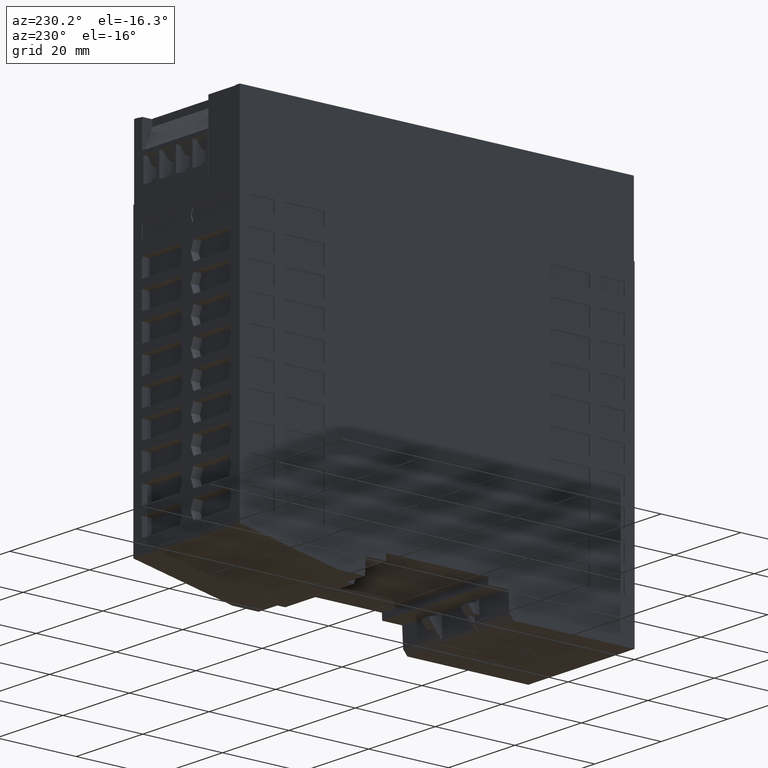
[diagram: clean part render]
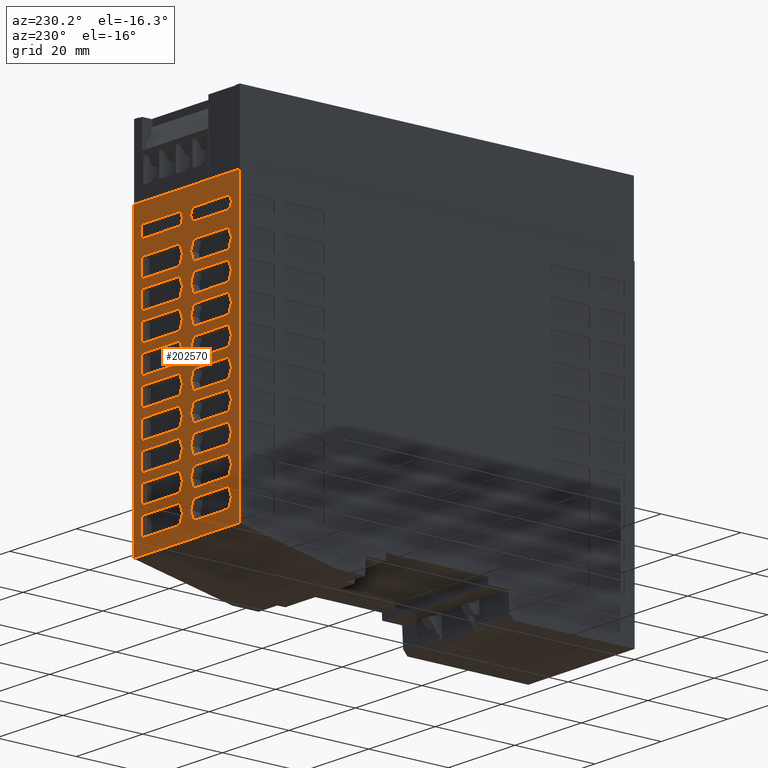
[diagram: same view with one face highlighted and labeled with its STEP entity id]
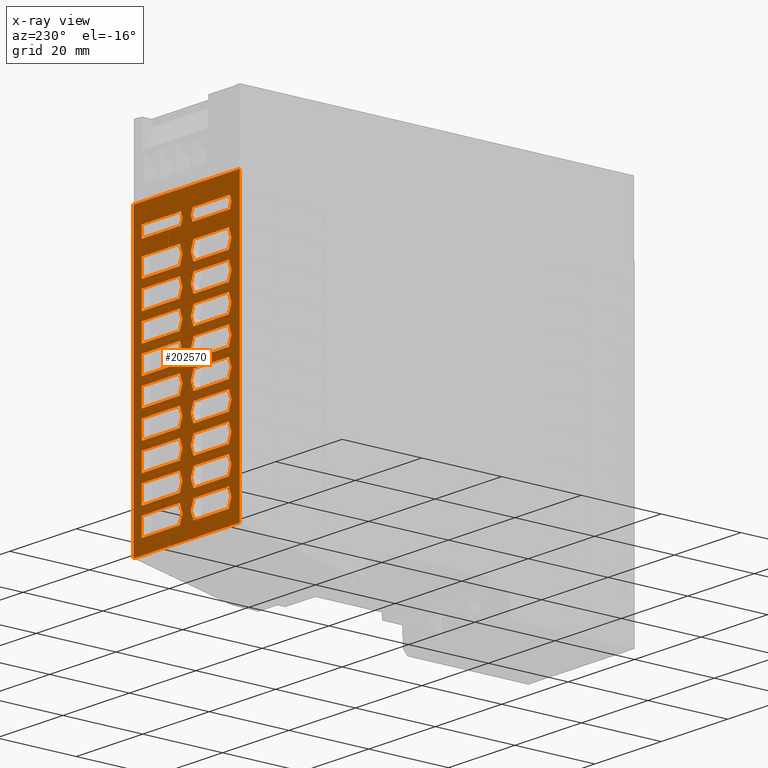
[diagram: x-ray of the same camera — body ghosted, the highlighted face saturated]
A machine part, auxiliary view. The second image highlights one B-rep face of the part: STEP entity #202570.
The next image is the same camera in x-ray: the body ghosted, the highlighted face saturated — about 0% of this face is hidden behind the body in this view.
In plain terms, the highlighted planar face has unit normal (0, -1, 0).
Its self-contained STEP definition (entity closure, byte-faithful):
#60=CARTESIAN_POINT('',(-16.,71.8,49.5095866831055));
#70=DIRECTION('',(0.,-1.,0.));
#80=VECTOR('',#70,1.);
#90=LINE('',#60,#80);
#100=CARTESIAN_POINT('',(-16.,71.8,49.5095866831055));
#110=VERTEX_POINT('',#100);
#120=CARTESIAN_POINT('',(-16.,0.822495129039766,49.5095866831055));
#130=VERTEX_POINT('',#120);
#140=EDGE_CURVE('',#110,#130,#90,.T.);
#23820=CARTESIAN_POINT('',(16.,0.822495129039751,49.5095866831055));
#23830=VERTEX_POINT('',#23820);
#23860=CARTESIAN_POINT('',(16.,71.8,49.5095866831055));
#23870=DIRECTION('',(0.,1.,0.));
#23880=VECTOR('',#23870,1.);
#23890=LINE('',#23860,#23880);
#23900=CARTESIAN_POINT('',(16.,71.8,49.5095866831055));
#23910=VERTEX_POINT('',#23900);
#23920=EDGE_CURVE('',#23830,#23910,#23890,.T.);
#93070=CARTESIAN_POINT('',(0.,0.822495129039766,49.5095866831055));
#93080=DIRECTION('',(-1.,0.,0.));
#93090=VECTOR('',#93080,1.);
#93100=LINE('',#93070,#93090);
#93110=EDGE_CURVE('',#23830,#130,#93100,.T.);
#100860=CARTESIAN_POINT('',(-2.06893302709904,23.85,49.5095866831055));
#100870=VERTEX_POINT('',#100860);
#101040=CARTESIAN_POINT('',(-1.25,26.1,49.5095866831055));
#101050=VERTEX_POINT('',#101040);
#101080=CARTESIAN_POINT('',(15.3834397059671,71.8,49.5095866831055));
#101090=DIRECTION('',(-0.342020143325699,-0.939692620785897,0.));
#101100=VECTOR('',#101090,1.);
#101110=LINE('',#101080,#101100);
#101120=EDGE_CURVE('',#101050,#100870,#101110,.T.);
#109870=CARTESIAN_POINT('',(-2.06893302709903,28.35,49.5095866831055));
#109880=VERTEX_POINT('',#109870);
#109910=CARTESIAN_POINT('',(-17.8834397059671,71.8,49.5095866831055));
#109920=DIRECTION('',(0.342020143325699,-0.939692620785897,0.));
#109930=VECTOR('',#109920,1.);
#109940=LINE('',#109910,#109930);
#109950=EDGE_CURVE('',#109880,#101050,#109940,.T.);
#138200=CARTESIAN_POINT('',(6.45,71.8,49.5095866831055));
#138210=VERTEX_POINT('',#138200);
#141500=CARTESIAN_POINT('',(13.499999999999,13.1,49.5095866831055));
#141510=VERTEX_POINT('',#141500);
#141680=CARTESIAN_POINT('',(12.6810669729,15.35,49.5095866831055));
#141690=VERTEX_POINT('',#141680);
#141720=CARTESIAN_POINT('',(-7.86505275142919,71.8,49.5095866831055));
#141730=DIRECTION('',(0.342020143325699,-0.939692620785897,0.));
#141740=VECTOR('',#141730,1.);
#141750=LINE('',#141720,#141740);
#141760=EDGE_CURVE('',#141690,#141510,#141750,.T.);
#141970=CARTESIAN_POINT('',(-2.068933027099,47.85,49.5095866831055));
#141980=VERTEX_POINT('',#141970);
#142150=CARTESIAN_POINT('',(-13.5,47.85,49.5095866831055));
#142160=VERTEX_POINT('',#142150);
#142190=CARTESIAN_POINT('',(0.,47.85,49.5095866831055));
#142200=DIRECTION('',(1.,0.,0.));
#142210=VECTOR('',#142200,1.);
#142220=LINE('',#142190,#142210);
#142230=EDGE_CURVE('',#142160,#141980,#142220,.T.);
#142440=CARTESIAN_POINT('',(2.068933027099,60.85,49.5095866831055));
#142450=VERTEX_POINT('',#142440);
#142530=CARTESIAN_POINT('',(1.24999999999999,58.6,49.5095866831055));
#142540=VERTEX_POINT('',#142530);
#142570=CARTESIAN_POINT('',(6.05440709231433,71.8,49.5095866831055));
#142580=DIRECTION('',(0.342020143325699,0.939692620785897,0.));
#142590=VECTOR('',#142580,1.);
#142600=LINE('',#142570,#142590);
#142610=EDGE_CURVE('',#142540,#142450,#142600,.T.);
#142820=CARTESIAN_POINT('',(12.6810669729,10.85,49.5095866831055));
#142830=VERTEX_POINT('',#142820);
#142950=CARTESIAN_POINT('',(34.8650527514273,71.8,49.5095866831055));
#142960=DIRECTION('',(-0.342020143325699,-0.939692620785897,0.));
#142970=VECTOR('',#142960,1.);
#142980=LINE('',#142950,#142970);
#142990=EDGE_CURVE('',#141510,#142830,#142980,.T.);
#143200=CARTESIAN_POINT('',(-13.5,30.35,49.5095866831055));
#143210=VERTEX_POINT('',#143200);
#143380=CARTESIAN_POINT('',(-2.06893302709903,30.35,49.5095866831055));
#143390=VERTEX_POINT('',#143380);
#143420=CARTESIAN_POINT('',(0.,30.35,49.5095866831055));
#143430=DIRECTION('',(-1.,0.,0.));
#143440=VECTOR('',#143430,1.);
#143450=LINE('',#143420,#143440);
#143460=EDGE_CURVE('',#143390,#143210,#143450,.T.);
#143760=CARTESIAN_POINT('',(-13.5,43.35,49.5095866831055));
#143770=VERTEX_POINT('',#143760);
#143800=CARTESIAN_POINT('',(-13.5,71.8,49.5095866831055));
#143810=DIRECTION('',(0.,1.,0.));
#143820=VECTOR('',#143810,1.);
#143830=LINE('',#143800,#143820);
#143840=EDGE_CURVE('',#143770,#142160,#143830,.T.);
#153220=CARTESIAN_POINT('',(-13.5,71.8,49.5095866831055));
#153230=VERTEX_POINT('',#153220);
#153260=CARTESIAN_POINT('',(0.,71.8,49.5095866831055));
#153270=DIRECTION('',(1.,0.,0.));
#153280=VECTOR('',#153270,1.);
#153290=LINE('',#153260,#153280);
#153300=EDGE_CURVE('',#110,#153230,#153290,.T.);
#153350=CARTESIAN_POINT('',(0.,71.8,49.5095866831055));
#153360=DIRECTION('',(-1.,1.23259516440783E-32,0.));
#153370=VECTOR('',#153360,1.);
#153380=LINE('',#153350,#153370);
#153390=EDGE_CURVE('',#23910,#138210,#153380,.T.);
#166180=CARTESIAN_POINT('',(12.6810669729,56.35,49.5095866831055));
#166190=VERTEX_POINT('',#166180);
#166270=CARTESIAN_POINT('',(13.499999999999,58.6,49.5095866831055));
#166280=VERTEX_POINT('',#166270);
#166310=CARTESIAN_POINT('',(18.3044070923134,71.8,49.5095866831055));
#166320=DIRECTION('',(-0.342020143325699,-0.939692620785897,0.));
#166330=VECTOR('',#166320,1.);
#166340=LINE('',#166310,#166330);
#166350=EDGE_CURVE('',#166280,#166190,#166340,.T.);
#167550=CARTESIAN_POINT('',(12.6810669729,49.85,49.5095866831055));
#167560=VERTEX_POINT('',#167550);
#167730=CARTESIAN_POINT('',(13.4999999999995,52.1000000000013,
49.5095866831055));
#167740=VERTEX_POINT('',#167730);
#167770=CARTESIAN_POINT('',(20.670213615044,71.8,49.5095866831055));
#167780=DIRECTION('',(-0.342020143325699,-0.939692620785897,0.));
#167790=VECTOR('',#167780,1.);
#167800=LINE('',#167770,#167790);
#167810=EDGE_CURVE('',#167740,#167560,#167800,.T.);
#168020=CARTESIAN_POINT('',(2.06893302709904,43.35,49.5095866831055));
#168030=VERTEX_POINT('',#168020);
#168110=CARTESIAN_POINT('',(12.6810669729,43.35,49.5095866831055));
#168120=VERTEX_POINT('',#168110);
#168150=CARTESIAN_POINT('',(0.,43.35,49.5095866831055));
#168160=DIRECTION('',(-1.,0.,0.));
#168170=VECTOR('',#168160,1.);
#168180=LINE('',#168150,#168170);
#168190=EDGE_CURVE('',#168120,#168030,#168180,.T.);
#168400=CARTESIAN_POINT('',(1.24999999999998,13.0999999999999,
49.5095866831055));
#168410=VERTEX_POINT('',#168400);
#168580=CARTESIAN_POINT('',(2.068933027099,10.85,49.5095866831055));
#168590=VERTEX_POINT('',#168580);
#168620=CARTESIAN_POINT('',(-20.1150527514283,71.8,49.5095866831055));
#168630=DIRECTION('',(-0.342020143325699,0.939692620785897,0.));
#168640=VECTOR('',#168630,1.);
#168650=LINE('',#168620,#168640);
#168660=EDGE_CURVE('',#168590,#168410,#168650,.T.);
#169300=CARTESIAN_POINT('',(2.06893302709904,15.35,49.5095866831055));
#169310=VERTEX_POINT('',#169300);
#169340=CARTESIAN_POINT('',(0.,15.35,49.5095866831055));
#169350=DIRECTION('',(1.,0.,0.));
#169360=VECTOR('',#169350,1.);
#169370=LINE('',#169340,#169360);
#169380=EDGE_CURVE('',#169310,#141690,#169370,.T.);
#169610=CARTESIAN_POINT('',(-1.24999999999998,32.6,49.5095866831055));
#169620=VERTEX_POINT('',#169610);
#169650=CARTESIAN_POINT('',(13.0176331832366,71.8,49.5095866831055));
#169660=DIRECTION('',(-0.342020143325699,-0.939692620785897,0.));
#169670=VECTOR('',#169660,1.);
#169680=LINE('',#169650,#169670);
#169690=EDGE_CURVE('',#169620,#143390,#169680,.T.);
#169900=CARTESIAN_POINT('',(12.681066972901,54.35,49.5095866831055));
#169910=VERTEX_POINT('',#169900);
#170080=CARTESIAN_POINT('',(2.06893302709904,54.35,49.5095866831055));
#170090=VERTEX_POINT('',#170080);
#170120=CARTESIAN_POINT('',(0.,54.35,49.5095866831055));
#170130=DIRECTION('',(1.,0.,0.));
#170140=VECTOR('',#170130,1.);
#170150=LINE('',#170120,#170140);
#170160=EDGE_CURVE('',#170090,#169910,#170150,.T.);
#170370=CARTESIAN_POINT('',(-2.06893302709903,49.85,49.5095866831055));
#170380=VERTEX_POINT('',#170370);
#170550=CARTESIAN_POINT('',(-1.24999999999999,52.1,49.5095866831055));
#170560=VERTEX_POINT('',#170550);
#170590=CARTESIAN_POINT('',(5.92021361504492,71.8,49.5095866831055));
#170600=DIRECTION('',(-0.342020143325699,-0.939692620785897,0.));
#170610=VECTOR('',#170600,1.);
#170620=LINE('',#170590,#170610);
#170630=EDGE_CURVE('',#170560,#170380,#170620,.T.);
#170840=CARTESIAN_POINT('',(12.6810669729,60.85,49.5095866831055));
#170850=VERTEX_POINT('',#170840);
#170900=CARTESIAN_POINT('',(0.,60.85,49.5095866831055));
#170910=DIRECTION('',(1.,0.,0.));
#170920=VECTOR('',#170910,1.);
#170930=LINE('',#170900,#170920);
#170940=EDGE_CURVE('',#142450,#170850,#170930,.T.);
#171150=CARTESIAN_POINT('',(2.06893302709904,56.35,49.5095866831055));
#171160=VERTEX_POINT('',#171150);
#171210=CARTESIAN_POINT('',(0.,56.35,49.5095866831055));
#171220=DIRECTION('',(-1.,0.,0.));
#171230=VECTOR('',#171220,1.);
#171240=LINE('',#171210,#171230);
#171250=EDGE_CURVE('',#166190,#171160,#171240,.T.);
#171460=CARTESIAN_POINT('',(2.068933027099,49.85,49.5095866831055));
#171470=VERTEX_POINT('',#171460);
#171590=CARTESIAN_POINT('',(0.,49.85,49.5095866831055));
#171600=DIRECTION('',(-1.,0.,0.));
#171610=VECTOR('',#171600,1.);
#171620=LINE('',#171590,#171610);
#171630=EDGE_CURVE('',#167560,#171470,#171620,.T.);
#171840=CARTESIAN_POINT('',(13.499999999999,45.6,49.5095866831055));
#171850=VERTEX_POINT('',#171840);
#171930=CARTESIAN_POINT('',(12.6810669729,47.85,49.5095866831055));
#171940=VERTEX_POINT('',#171930);
#171970=CARTESIAN_POINT('',(3.96397986222357,71.8,49.5095866831055));
#171980=DIRECTION('',(0.342020143325699,-0.939692620785897,0.));
#171990=VECTOR('',#171980,1.);
#172000=LINE('',#171970,#171990);
#172010=EDGE_CURVE('',#171940,#171850,#172000,.T.);
#172220=CARTESIAN_POINT('',(-13.5,54.35,49.5095866831055));
#172230=VERTEX_POINT('',#172220);
#172400=CARTESIAN_POINT('',(-13.5,49.85,49.5095866831055));
#172410=VERTEX_POINT('',#172400);
#172440=CARTESIAN_POINT('',(-13.5,71.8,49.5095866831055));
#172450=DIRECTION('',(0.,1.,0.));
#172460=VECTOR('',#172450,1.);
#172470=LINE('',#172440,#172460);
#172480=EDGE_CURVE('',#172410,#172230,#172470,.T.);
#172690=CARTESIAN_POINT('',(1.24999999999999,52.0999999999999,
49.5095866831055));
#172700=VERTEX_POINT('',#172690);
#172820=CARTESIAN_POINT('',(-5.92021361504495,71.8,49.5095866831055));
#172830=DIRECTION('',(-0.342020143325699,0.939692620785897,0.));
#172840=VECTOR('',#172830,1.);
#172850=LINE('',#172820,#172840);
#172860=EDGE_CURVE('',#171470,#172700,#172850,.T.);
#174070=CARTESIAN_POINT('',(-1.25,6.59999999999997,49.5095866831055));
#174080=VERTEX_POINT('',#174070);
#174160=CARTESIAN_POINT('',(-2.06893302709904,8.84999999999998,
49.5095866831055));
#174170=VERTEX_POINT('',#174160);
#174200=CARTESIAN_POINT('',(-24.9808592741588,71.8,49.5095866831055));
#174210=DIRECTION('',(0.342020143325699,-0.939692620785897,0.));
#174220=VECTOR('',#174210,1.);
#174230=LINE('',#174200,#174220);
#174240=EDGE_CURVE('',#174170,#174080,#174230,.T.);
#174450=CARTESIAN_POINT('',(-2.06893302709903,4.34999999999998,
49.5095866831055));
#174460=VERTEX_POINT('',#174450);
#174510=CARTESIAN_POINT('',(22.4808592741588,71.8,49.5095866831055));
#174520=DIRECTION('',(-0.342020143325699,-0.939692620785897,0.));
#174530=VECTOR('',#174520,1.);
#174540=LINE('',#174510,#174530);
#174550=EDGE_CURVE('',#174080,#174460,#174540,.T.);
#174760=CARTESIAN_POINT('',(-13.5,4.34999999999998,49.5095866831055));
#174770=VERTEX_POINT('',#174760);
#174820=CARTESIAN_POINT('',(0.,4.34999999999998,49.5095866831055));
#174830=DIRECTION('',(-1.,0.,0.));
#174840=VECTOR('',#174830,1.);
#174850=LINE('',#174820,#174840);
#174860=EDGE_CURVE('',#174460,#174770,#174850,.T.);
#175070=CARTESIAN_POINT('',(-13.5,8.84999999999998,49.5095866831055));
#175080=VERTEX_POINT('',#175070);
#175130=CARTESIAN_POINT('',(-13.5,71.8,49.5095866831055));
#175140=DIRECTION('',(0.,1.,0.));
#175150=VECTOR('',#175140,1.);
#175160=LINE('',#175130,#175150);
#175170=EDGE_CURVE('',#174770,#175080,#175160,.T.);
#175370=CARTESIAN_POINT('',(0.,8.84999999999998,49.5095866831055));
#175380=DIRECTION('',(1.,0.,0.));
#175390=VECTOR('',#175380,1.);
#175400=LINE('',#175370,#175390);
#175410=EDGE_CURVE('',#175080,#174170,#175400,.T.);
#175620=CARTESIAN_POINT('',(-13.5,34.85,49.5095866831055));
#175630=VERTEX_POINT('',#175620);
#175680=CARTESIAN_POINT('',(-13.5,71.8,49.5095866831055));
#175690=DIRECTION('',(0.,1.,0.));
#175700=VECTOR('',#175690,1.);
#175710=LINE('',#175680,#175700);
#175720=EDGE_CURVE('',#143210,#175630,#175710,.T.);
#175930=CARTESIAN_POINT('',(1.25000000000001,45.6,49.5095866831055));
#175940=VERTEX_POINT('',#175930);
#175990=CARTESIAN_POINT('',(-8.28602013777546,71.8,49.5095866831055));
#176000=DIRECTION('',(-0.342020143325699,0.939692620785897,0.));
#176010=VECTOR('',#176000,1.);
#176020=LINE('',#175990,#176010);
#176030=EDGE_CURVE('',#168030,#175940,#176020,.T.);
#176590=CARTESIAN_POINT('',(-2.06893302709903,54.35,49.5095866831055));
#176600=VERTEX_POINT('',#176590);
#176630=CARTESIAN_POINT('',(-8.42021361504491,71.8,49.5095866831055));
#176640=DIRECTION('',(0.342020143325699,-0.939692620785897,0.));
#176650=VECTOR('',#176640,1.);
#176660=LINE('',#176630,#176650);
#176670=EDGE_CURVE('',#176600,#170560,#176660,.T.);
#176900=CARTESIAN_POINT('',(-2.068933027099,34.85,49.5095866831055));
#176910=VERTEX_POINT('',#176900);
#176940=CARTESIAN_POINT('',(-15.5176331832365,71.8,49.5095866831055));
#176950=DIRECTION('',(0.342020143325699,-0.939692620785897,0.));
#176960=VECTOR('',#176950,1.);
#176970=LINE('',#176940,#176960);
#176980=EDGE_CURVE('',#176910,#169620,#176970,.T.);
#177230=CARTESIAN_POINT('',(0.,10.85,49.5095866831055));
#177240=DIRECTION('',(-1.,0.,0.));
#177250=VECTOR('',#177240,1.);
#177260=LINE('',#177230,#177250);
#177270=EDGE_CURVE('',#142830,#168590,#177260,.T.);
#177520=CARTESIAN_POINT('',(0.,49.85,49.5095866831055));
#177530=DIRECTION('',(-1.,0.,0.));
#177540=VECTOR('',#177530,1.);
#177550=LINE('',#177520,#177540);
#177560=EDGE_CURVE('',#170380,#172410,#177550,.T.);
#177770=CARTESIAN_POINT('',(-2.068933027099,56.35,49.5095866831055));
#177780=VERTEX_POINT('',#177770);
#177860=CARTESIAN_POINT('',(-1.24999999999996,58.6,49.5095866831055));
#177870=VERTEX_POINT('',#177860);
#177900=CARTESIAN_POINT('',(3.5544070923144,71.8,49.5095866831055));
#177910=DIRECTION('',(-0.342020143325699,-0.939692620785897,0.));
#177920=VECTOR('',#177910,1.);
#177930=LINE('',#177900,#177920);
#177940=EDGE_CURVE('',#177870,#177780,#177930,.T.);
#178140=CARTESIAN_POINT('',(0.,34.85,49.5095866831055));
#178150=DIRECTION('',(1.,0.,0.));
#178160=VECTOR('',#178150,1.);
#178170=LINE('',#178140,#178160);
#178180=EDGE_CURVE('',#175630,#176910,#178170,.T.);
#178380=CARTESIAN_POINT('',(-3.55440709231436,71.8,49.5095866831055));
#178390=DIRECTION('',(-0.342020143325699,0.939692620785897,0.));
#178400=VECTOR('',#178390,1.);
#178410=LINE('',#178380,#178400);
#178420=EDGE_CURVE('',#171160,#142540,#178410,.T.);
#178650=CARTESIAN_POINT('',(-2.06893302709903,43.35,49.5095866831055));
#178660=VERTEX_POINT('',#178650);
#178690=CARTESIAN_POINT('',(0.,43.35,49.5095866831055));
#178700=DIRECTION('',(-1.,0.,0.));
#178710=VECTOR('',#178700,1.);
#178720=LINE('',#178690,#178710);
#178730=EDGE_CURVE('',#178660,#143770,#178720,.T.);
#178940=CARTESIAN_POINT('',(-1.24999999999998,45.6,49.5095866831055));
#178950=VERTEX_POINT('',#178940);
#179000=CARTESIAN_POINT('',(-10.7860201377754,71.8,49.5095866831055));
#179010=DIRECTION('',(0.342020143325699,-0.939692620785897,0.));
#179020=VECTOR('',#179010,1.);
#179030=LINE('',#179000,#179020);
#179040=EDGE_CURVE('',#141980,#178950,#179030,.T.);
#179250=CARTESIAN_POINT('',(-2.06893302709899,60.85,49.5095866831055));
#179260=VERTEX_POINT('',#179250);
#179340=CARTESIAN_POINT('',(-13.5,60.85,49.5095866831055));
#179350=VERTEX_POINT('',#179340);
#179380=CARTESIAN_POINT('',(0.,60.85,49.5095866831055));
#179390=DIRECTION('',(1.,0.,0.));
#179400=VECTOR('',#179390,1.);
#179410=LINE('',#179380,#179400);
#179420=EDGE_CURVE('',#179350,#179260,#179410,.T.);
#179620=CARTESIAN_POINT('',(-6.05440709231432,71.8,49.5095866831055));
#179630=DIRECTION('',(0.342020143325699,-0.939692620785897,0.));
#179640=VECTOR('',#179630,1.);
#179650=LINE('',#179620,#179640);
#179660=EDGE_CURVE('',#179260,#177870,#179650,.T.);
#179860=CARTESIAN_POINT('',(8.69559290768468,71.8,49.5095866831055));
#179870=DIRECTION('',(0.342020143325699,-0.939692620785897,0.));
#179880=VECTOR('',#179870,1.);
#179890=LINE('',#179860,#179880);
#179900=EDGE_CURVE('',#170850,#166280,#179890,.T.);
#180150=CARTESIAN_POINT('',(0.,54.35,49.5095866831055));
#180160=DIRECTION('',(1.,0.,0.));
#180170=VECTOR('',#180160,1.);
#180180=LINE('',#180150,#180170);
#180190=EDGE_CURVE('',#172230,#176600,#180180,.T.);
#180390=CARTESIAN_POINT('',(8.28602013777547,71.8,49.5095866831055));
#180400=DIRECTION('',(-0.342020143325699,-0.939692620785897,0.));
#180410=VECTOR('',#180400,1.);
#180420=LINE('',#180390,#180410);
#180430=EDGE_CURVE('',#178950,#178660,#180420,.T.);
#180790=CARTESIAN_POINT('',(2.06893302709904,47.85,49.5095866831055));
#180800=VERTEX_POINT('',#180790);
#180850=CARTESIAN_POINT('',(10.7860201377755,71.8,49.5095866831055));
#180860=DIRECTION('',(0.342020143325699,0.939692620785897,0.));
#180870=VECTOR('',#180860,1.);
#180880=LINE('',#180850,#180870);
#180890=EDGE_CURVE('',#175940,#180800,#180880,.T.);
#181120=CARTESIAN_POINT('',(-13.5,56.35,49.5095866831055));
#181130=VERTEX_POINT('',#181120);
#181160=CARTESIAN_POINT('',(-13.5,71.8,49.5095866831055));
#181170=DIRECTION('',(0.,1.,0.));
#181180=VECTOR('',#181170,1.);
#181190=LINE('',#181160,#181180);
#181200=EDGE_CURVE('',#181130,#179350,#181190,.T.);
#181400=CARTESIAN_POINT('',(8.42021361504492,71.8,49.5095866831055));
#181410=DIRECTION('',(0.342020143325699,0.939692620785897,0.));
#181420=VECTOR('',#181410,1.);
#181430=LINE('',#181400,#181420);
#181440=EDGE_CURVE('',#172700,#170090,#181430,.T.);
#181640=CARTESIAN_POINT('',(0.,47.85,49.5095866831055));
#181650=DIRECTION('',(1.,0.,0.));
#181660=VECTOR('',#181650,1.);
#181670=LINE('',#181640,#181660);
#181680=EDGE_CURVE('',#180800,#171940,#181670,.T.);
#181880=CARTESIAN_POINT('',(6.32978638495509,71.8,49.5095866831055));
#181890=DIRECTION('',(0.342020143325699,-0.939692620785897,0.));
#181900=VECTOR('',#181890,1.);
#181910=LINE('',#181880,#181900);
#181920=EDGE_CURVE('',#169910,#167740,#181910,.T.);
#182120=CARTESIAN_POINT('',(23.0360201377745,71.8,49.5095866831055));
#182130=DIRECTION('',(-0.342020143325699,-0.939692620785897,0.));
#182140=VECTOR('',#182130,1.);
#182150=LINE('',#182120,#182140);
#182160=EDGE_CURVE('',#171850,#168120,#182150,.T.);
#182360=CARTESIAN_POINT('',(0.,56.35,49.5095866831055));
#182370=DIRECTION('',(-1.,0.,0.));
#182380=VECTOR('',#182370,1.);
#182390=LINE('',#182360,#182380);
#182400=EDGE_CURVE('',#177780,#181130,#182390,.T.);
#182810=CARTESIAN_POINT('',(22.6150527514282,71.8,49.5095866831055));
#182820=DIRECTION('',(0.342020143325699,0.939692620785897,0.));
#182830=VECTOR('',#182820,1.);
#182840=LINE('',#182810,#182830);
#182850=EDGE_CURVE('',#168410,#169310,#182840,.T.);
#193860=CARTESIAN_POINT('',(-6.50000000000001,71.8,49.5095866831055));
#193870=DIRECTION('',(0.,0.,-1.));
#193880=DIRECTION('',(0.,1.,0.));
#193890=AXIS2_PLACEMENT_3D('',#193860,#193870,#193880);
#193900=PLANE('',#193890);
#193990=CARTESIAN_POINT('',(0.,71.8,49.5095866831055));
#194000=DIRECTION('',(-1.,0.,0.));
#194010=VECTOR('',#194000,1.);
#194020=LINE('',#193990,#194010);
#194030=EDGE_CURVE('',#138210,#153230,#194020,.T.);
#196880=CARTESIAN_POINT('',(15.6656228938803,71.8,49.5095866831055));
#196890=DIRECTION('',(-0.342020143325699,-0.939692620785897,0.));
#196900=VECTOR('',#196890,1.);
#196910=LINE('',#196880,#196900);
#196920=CARTESIAN_POINT('',(13.4999999999981,65.8500000000052,
49.5095866831055));
#196930=VERTEX_POINT('',#196920);
#196940=CARTESIAN_POINT('',(12.96759118914,64.387218814254,
49.5095866831055));
#196950=VERTEX_POINT('',#196940);
#196960=EDGE_CURVE('',#196930,#196950,#196910,.T.);
#196970=ORIENTED_EDGE('',*,*,#196960,.T.);
#196980=CARTESIAN_POINT('',(11.3343771061159,71.8,49.5095866831055));
#196990=DIRECTION('',(0.342020143325699,-0.939692620785897,0.));
#197000=VECTOR('',#196990,1.);
#197010=LINE('',#196980,#197000);
#197020=CARTESIAN_POINT('',(12.9676715751882,67.312560326904,
49.5095866831055));
#197030=VERTEX_POINT('',#197020);
#197040=EDGE_CURVE('',#197030,#196930,#197010,.T.);
#197050=ORIENTED_EDGE('',*,*,#197040,.T.);
#197060=CARTESIAN_POINT('',(0.,67.312560326904,49.5095866831055));
#197070=DIRECTION('',(1.,0.,0.));
#197080=VECTOR('',#197070,1.);
#197090=LINE('',#197060,#197080);
#197100=CARTESIAN_POINT('',(1.78232842481176,67.312560326904,
49.5095866831055));
#197110=VERTEX_POINT('',#197100);
#197120=EDGE_CURVE('',#197110,#197030,#197090,.T.);
#197130=ORIENTED_EDGE('',*,*,#197120,.T.);
#197140=CARTESIAN_POINT('',(3.41562289388413,71.8,49.5095866831055));
#197150=DIRECTION('',(0.342020143325699,0.939692620785897,0.));
#197160=VECTOR('',#197150,1.);
#197170=LINE('',#197140,#197160);
#197180=CARTESIAN_POINT('',(1.2499999999999,65.8499999999997,
49.5095866831055));
#197190=VERTEX_POINT('',#197180);
#197200=EDGE_CURVE('',#197190,#197110,#197170,.T.);
#197210=ORIENTED_EDGE('',*,*,#197200,.T.);
#197220=CARTESIAN_POINT('',(-0.915622893884341,71.8,49.5095866831055));
#197230=DIRECTION('',(-0.342020143325699,0.939692620785897,0.));
#197240=VECTOR('',#197230,1.);
#197250=LINE('',#197220,#197240);
#197260=CARTESIAN_POINT('',(1.782408810856,64.387218814254,
49.5095866831055));
#197270=VERTEX_POINT('',#197260);
#197280=EDGE_CURVE('',#197270,#197190,#197250,.T.);
#197290=ORIENTED_EDGE('',*,*,#197280,.T.);
#197300=CARTESIAN_POINT('',(0.,64.387218814254,49.5095866831055));
#197310=DIRECTION('',(-1.,0.,0.));
#197320=VECTOR('',#197310,1.);
#197330=LINE('',#197300,#197320);
#197340=EDGE_CURVE('',#196950,#197270,#197330,.T.);
#197350=ORIENTED_EDGE('',*,*,#197340,.T.);
#197360=EDGE_LOOP('',(#197350,#197290,#197210,#197130,#197050,#196970));
#197370=FACE_BOUND('',#197360,.T.);
#197380=ORIENTED_EDGE('',*,*,#175410,.T.);
#197390=ORIENTED_EDGE('',*,*,#175170,.T.);
#197400=ORIENTED_EDGE('',*,*,#174860,.T.);
#197410=ORIENTED_EDGE('',*,*,#174550,.T.);
#197420=ORIENTED_EDGE('',*,*,#174240,.T.);
#197430=EDGE_LOOP('',(#197420,#197410,#197400,#197390,#197380));
#197440=FACE_BOUND('',#197430,.T.);
#197450=CARTESIAN_POINT('',(0.,28.35,49.5095866831055));
#197460=DIRECTION('',(1.,0.,0.));
#197470=VECTOR('',#197460,1.);
#197480=LINE('',#197450,#197470);
#197490=CARTESIAN_POINT('',(-13.5,28.35,49.5095866831055));
#197500=VERTEX_POINT('',#197490);
#197510=EDGE_CURVE('',#197500,#109880,#197480,.T.);
#197520=ORIENTED_EDGE('',*,*,#197510,.T.);
#197530=CARTESIAN_POINT('',(-13.5,71.8,49.5095866831055));
#197540=DIRECTION('',(0.,1.,0.));
#197550=VECTOR('',#197540,1.);
#197560=LINE('',#197530,#197550);
#197570=CARTESIAN_POINT('',(-13.5,23.85,49.5095866831055));
#197580=VERTEX_POINT('',#197570);
#197590=EDGE_CURVE('',#197580,#197500,#197560,.T.);
#197600=ORIENTED_EDGE('',*,*,#197590,.T.);
#197610=CARTESIAN_POINT('',(0.,23.85,49.5095866831055));
#197620=DIRECTION('',(-1.,0.,0.));
#197630=VECTOR('',#197620,1.);
#197640=LINE('',#197610,#197630);
#197650=EDGE_CURVE('',#100870,#197580,#197640,.T.);
#197660=ORIENTED_EDGE('',*,*,#197650,.T.);
#197670=ORIENTED_EDGE('',*,*,#101120,.T.);
#197680=ORIENTED_EDGE('',*,*,#109950,.T.);
#197690=EDGE_LOOP('',(#197680,#197670,#197660,#197600,#197520));
#197700=FACE_BOUND('',#197690,.T.);
#197710=CARTESIAN_POINT('',(0.,67.3,49.5095866831055));
#197720=DIRECTION('',(1.,0.,0.));
#197730=VECTOR('',#197720,1.);
#197740=LINE('',#197710,#197730);
#197750=CARTESIAN_POINT('',(-13.5,67.3,49.5095866831055));
#197760=VERTEX_POINT('',#197750);
#197770=CARTESIAN_POINT('',(-1.77775683968604,67.3,49.5095866831055));
#197780=VERTEX_POINT('',#197770);
#197790=EDGE_CURVE('',#197760,#197780,#197740,.T.);
#197800=ORIENTED_EDGE('',*,*,#197790,.T.);
#197810=CARTESIAN_POINT('',(-13.5,71.8,49.5095866831055));
#197820=DIRECTION('',(0.,1.,0.));
#197830=VECTOR('',#197820,1.);
#197840=LINE('',#197810,#197830);
#197850=CARTESIAN_POINT('',(-13.5,64.4,49.5095866831055));
#197860=VERTEX_POINT('',#197850);
#197870=EDGE_CURVE('',#197860,#197760,#197840,.T.);
#197880=ORIENTED_EDGE('',*,*,#197870,.T.);
#197890=CARTESIAN_POINT('',(0.,64.4,49.5095866831055));
#197900=DIRECTION('',(-1.,0.,0.));
#197910=VECTOR('',#197900,1.);
#197920=LINE('',#197890,#197910);
#197930=CARTESIAN_POINT('',(-1.77775683968604,64.4,49.5095866831055));
#197940=VERTEX_POINT('',#197930);
#197950=EDGE_CURVE('',#197940,#197860,#197920,.T.);
#197960=ORIENTED_EDGE('',*,*,#197950,.T.);
#197970=CARTESIAN_POINT('',(0.915622893884131,71.8,49.5095866831055));
#197980=DIRECTION('',(-0.342020143325699,-0.939692620785897,0.));
#197990=VECTOR('',#197980,1.);
#198000=LINE('',#197970,#197990);
#198010=CARTESIAN_POINT('',(-1.25,65.85,49.5095866831055));
#198020=VERTEX_POINT('',#198010);
#198030=EDGE_CURVE('',#198020,#197940,#198000,.T.);
#198040=ORIENTED_EDGE('',*,*,#198030,.T.);
#198050=CARTESIAN_POINT('',(-3.41562289388412,71.8,49.5095866831055));
#198060=DIRECTION('',(0.342020143325699,-0.939692620785897,0.));
#198070=VECTOR('',#198060,1.);
#198080=LINE('',#198050,#198070);
#198090=EDGE_CURVE('',#197780,#198020,#198080,.T.);
#198100=ORIENTED_EDGE('',*,*,#198090,.T.);
#198110=EDGE_LOOP('',(#198100,#198040,#197960,#197880,#197800));
#198120=FACE_BOUND('',#198110,.T.);
#198130=CARTESIAN_POINT('',(0.,41.35,49.5095866831055));
#198140=DIRECTION('',(1.,0.,0.));
#198150=VECTOR('',#198140,1.);
#198160=LINE('',#198130,#198150);
#198170=CARTESIAN_POINT('',(-13.5,41.35,49.5095866831055));
#198180=VERTEX_POINT('',#198170);
#198190=CARTESIAN_POINT('',(-2.06893302709904,41.35,49.5095866831055));
#198200=VERTEX_POINT('',#198190);
#198210=EDGE_CURVE('',#198180,#198200,#198160,.T.);
#198220=ORIENTED_EDGE('',*,*,#198210,.T.);
#198230=CARTESIAN_POINT('',(-13.5,71.8,49.5095866831055));
#198240=DIRECTION('',(0.,1.,0.));
#198250=VECTOR('',#198240,1.);
#198260=LINE('',#198230,#198250);
#198270=CARTESIAN_POINT('',(-13.5,36.85,49.5095866831055));
#198280=VERTEX_POINT('',#198270);
#198290=EDGE_CURVE('',#198280,#198180,#198260,.T.);
#198300=ORIENTED_EDGE('',*,*,#198290,.T.);
#198310=CARTESIAN_POINT('',(0.,36.85,49.5095866831055));
#198320=DIRECTION('',(-1.,0.,0.));
#198330=VECTOR('',#198320,1.);
#198340=LINE('',#198310,#198330);
#198350=CARTESIAN_POINT('',(-2.06893302709903,36.85,49.5095866831055));
#198360=VERTEX_POINT('',#198350);
#198370=EDGE_CURVE('',#198360,#198280,#198340,.T.);
#198380=ORIENTED_EDGE('',*,*,#198370,.T.);
#198390=CARTESIAN_POINT('',(10.651826660506,71.8,49.5095866831055));
#198400=DIRECTION('',(-0.342020143325699,-0.939692620785897,0.));
#198410=VECTOR('',#198400,1.);
#198420=LINE('',#198390,#198410);
#198430=CARTESIAN_POINT('',(-1.25,39.1,49.5095866831055));
#198440=VERTEX_POINT('',#198430);
#198450=EDGE_CURVE('',#198440,#198360,#198420,.T.);
#198460=ORIENTED_EDGE('',*,*,#198450,.T.);
#198470=CARTESIAN_POINT('',(-13.151826660506,71.8,49.5095866831055));
#198480=DIRECTION('',(0.342020143325699,-0.939692620785897,0.));
#198490=VECTOR('',#198480,1.);
#198500=LINE('',#198470,#198490);
#198510=EDGE_CURVE('',#198200,#198440,#198500,.T.);
#198520=ORIENTED_EDGE('',*,*,#198510,.T.);
#198530=EDGE_LOOP('',(#198520,#198460,#198380,#198300,#198220));
#198540=FACE_BOUND('',#198530,.T.);
#198550=ORIENTED_EDGE('',*,*,#182400,.T.);
#198560=ORIENTED_EDGE('',*,*,#177940,.T.);
#198570=ORIENTED_EDGE('',*,*,#179660,.T.);
#198580=ORIENTED_EDGE('',*,*,#179420,.T.);
#198590=ORIENTED_EDGE('',*,*,#181200,.T.);
#198600=EDGE_LOOP('',(#198590,#198580,#198570,#198560,#198550));
#198610=FACE_BOUND('',#198600,.T.);
#198620=ORIENTED_EDGE('',*,*,#180190,.T.);
#198630=ORIENTED_EDGE('',*,*,#172480,.T.);
#198640=ORIENTED_EDGE('',*,*,#177560,.T.);
#198650=ORIENTED_EDGE('',*,*,#170630,.T.);
#198660=ORIENTED_EDGE('',*,*,#176670,.T.);
#198670=EDGE_LOOP('',(#198660,#198650,#198640,#198630,#198620));
#198680=FACE_BOUND('',#198670,.T.);
#198690=CARTESIAN_POINT('',(0.,15.35,49.5095866831055));
#198700=DIRECTION('',(1.,0.,0.));
#198710=VECTOR('',#198700,1.);
#198720=LINE('',#198690,#198710);
#198730=CARTESIAN_POINT('',(-13.5,15.35,49.5095866831055));
#198740=VERTEX_POINT('',#198730);
#198750=CARTESIAN_POINT('',(-2.06893302709903,15.35,49.5095866831055));
#198760=VERTEX_POINT('',#198750);
#198770=EDGE_CURVE('',#198740,#198760,#198720,.T.);
#198780=ORIENTED_EDGE('',*,*,#198770,.T.);
#198790=CARTESIAN_POINT('',(-13.5,71.8,49.5095866831055));
#198800=DIRECTION('',(0.,1.,0.));
#198810=VECTOR('',#198800,1.);
#198820=LINE('',#198790,#198810);
#198830=CARTESIAN_POINT('',(-13.5,10.85,49.5095866831055));
#198840=VERTEX_POINT('',#198830);
#198850=EDGE_CURVE('',#198840,#198740,#198820,.T.);
#198860=ORIENTED_EDGE('',*,*,#198850,.T.);
#198870=CARTESIAN_POINT('',(0.,10.85,49.5095866831055));
#198880=DIRECTION('',(-1.,0.,0.));
#198890=VECTOR('',#198880,1.);
#198900=LINE('',#198870,#198890);
#198910=CARTESIAN_POINT('',(-2.06893302709903,10.85,49.5095866831055));
#198920=VERTEX_POINT('',#198910);
#198930=EDGE_CURVE('',#198920,#198840,#198900,.T.);
#198940=ORIENTED_EDGE('',*,*,#198930,.T.);
#198950=CARTESIAN_POINT('',(20.1150527514282,71.8,49.5095866831055));
#198960=DIRECTION('',(-0.342020143325699,-0.939692620785897,0.));
#198970=VECTOR('',#198960,1.);
#198980=LINE('',#198950,#198970);
#198990=CARTESIAN_POINT('',(-1.25,13.1,49.5095866831055));
#199000=VERTEX_POINT('',#198990);
#199010=EDGE_CURVE('',#199000,#198920,#198980,.T.);
#199020=ORIENTED_EDGE('',*,*,#199010,.T.);
#199030=CARTESIAN_POINT('',(-22.6150527514282,71.8,49.5095866831055));
#199040=DIRECTION('',(0.342020143325699,-0.939692620785897,0.));
#199050=VECTOR('',#199040,1.);
#199060=LINE('',#199030,#199050);
#199070=EDGE_CURVE('',#198760,#199000,#199060,.T.);
#199080=ORIENTED_EDGE('',*,*,#199070,.T.);
#199090=EDGE_LOOP('',(#199080,#199020,#198940,#198860,#198780));
#199100=FACE_BOUND('',#199090,.T.);
#199110=ORIENTED_EDGE('',*,*,#179040,.T.);
#199120=ORIENTED_EDGE('',*,*,#142230,.T.);
#199130=ORIENTED_EDGE('',*,*,#143840,.T.);
#199140=ORIENTED_EDGE('',*,*,#178730,.T.);
#199150=ORIENTED_EDGE('',*,*,#180430,.T.);
#199160=EDGE_LOOP('',(#199150,#199140,#199130,#199120,#199110));
#199170=FACE_BOUND('',#199160,.T.);
#199180=CARTESIAN_POINT('',(0.,21.85,49.5095866831055));
#199190=DIRECTION('',(1.,0.,0.));
#199200=VECTOR('',#199190,1.);
#199210=LINE('',#199180,#199200);
#199220=CARTESIAN_POINT('',(-13.5,21.85,49.5095866831055));
#199230=VERTEX_POINT('',#199220);
#199240=CARTESIAN_POINT('',(-2.068933027099,21.85,49.5095866831055));
#199250=VERTEX_POINT('',#199240);
#199260=EDGE_CURVE('',#199230,#199250,#199210,.T.);
#199270=ORIENTED_EDGE('',*,*,#199260,.T.);
#199280=CARTESIAN_POINT('',(-13.5,71.8,49.5095866831055));
#199290=DIRECTION('',(0.,1.,0.));
#199300=VECTOR('',#199290,1.);
#199310=LINE('',#199280,#199300);
#199320=CARTESIAN_POINT('',(-13.5,17.35,49.5095866831055));
#199330=VERTEX_POINT('',#199320);
#199340=EDGE_CURVE('',#199330,#199230,#199310,.T.);
#199350=ORIENTED_EDGE('',*,*,#199340,.T.);
#199360=CARTESIAN_POINT('',(0.,17.35,49.5095866831055));
#199370=DIRECTION('',(-1.,0.,0.));
#199380=VECTOR('',#199370,1.);
#199390=LINE('',#199360,#199380);
#199400=CARTESIAN_POINT('',(-2.06893302709904,17.35,49.5095866831055));
#199410=VERTEX_POINT('',#199400);
#199420=EDGE_CURVE('',#199410,#199330,#199390,.T.);
#199430=ORIENTED_EDGE('',*,*,#199420,.T.);
#199440=CARTESIAN_POINT('',(17.7492462286977,71.8,49.5095866831055));
#199450=DIRECTION('',(-0.342020143325699,-0.939692620785897,0.));
#199460=VECTOR('',#199450,1.);
#199470=LINE('',#199440,#199460);
#199480=CARTESIAN_POINT('',(-1.24999999999998,19.6,49.5095866831055));
#199490=VERTEX_POINT('',#199480);
#199500=EDGE_CURVE('',#199490,#199410,#199470,.T.);
#199510=ORIENTED_EDGE('',*,*,#199500,.T.);
#199520=CARTESIAN_POINT('',(-20.2492462286976,71.8,49.5095866831055));
#199530=DIRECTION('',(0.342020143325699,-0.939692620785897,0.));
#199540=VECTOR('',#199530,1.);
#199550=LINE('',#199520,#199540);
#199560=EDGE_CURVE('',#199250,#199490,#199550,.T.);
#199570=ORIENTED_EDGE('',*,*,#199560,.T.);
#199580=EDGE_LOOP('',(#199570,#199510,#199430,#199350,#199270));
#199590=FACE_BOUND('',#199580,.T.);
#199600=ORIENTED_EDGE('',*,*,#178180,.T.);
#199610=ORIENTED_EDGE('',*,*,#175720,.T.);
#199620=ORIENTED_EDGE('',*,*,#143460,.T.);
#199630=ORIENTED_EDGE('',*,*,#169690,.T.);
#199640=ORIENTED_EDGE('',*,*,#176980,.T.);
#199650=EDGE_LOOP('',(#199640,#199630,#199620,#199610,#199600));
#199660=FACE_BOUND('',#199650,.T.);
#199670=ORIENTED_EDGE('',*,*,#166350,.T.);
#199680=ORIENTED_EDGE('',*,*,#179900,.T.);
#199690=ORIENTED_EDGE('',*,*,#170940,.T.);
#199700=ORIENTED_EDGE('',*,*,#142610,.T.);
#199710=ORIENTED_EDGE('',*,*,#178420,.T.);
#199720=ORIENTED_EDGE('',*,*,#171250,.T.);
#199730=EDGE_LOOP('',(#199720,#199710,#199700,#199690,#199680,#199670));
#199740=FACE_BOUND('',#199730,.T.);
#199750=ORIENTED_EDGE('',*,*,#167810,.T.);
#199760=ORIENTED_EDGE('',*,*,#181920,.T.);
#199770=ORIENTED_EDGE('',*,*,#170160,.T.);
#199780=ORIENTED_EDGE('',*,*,#181440,.T.);
#199790=ORIENTED_EDGE('',*,*,#172860,.T.);
#199800=ORIENTED_EDGE('',*,*,#171630,.T.);
#199810=EDGE_LOOP('',(#199800,#199790,#199780,#199770,#199760,#199750));
#199820=FACE_BOUND('',#199810,.T.);
#199830=ORIENTED_EDGE('',*,*,#182160,.T.);
#199840=ORIENTED_EDGE('',*,*,#172010,.T.);
#199850=ORIENTED_EDGE('',*,*,#181680,.T.);
#199860=ORIENTED_EDGE('',*,*,#180890,.T.);
#199870=ORIENTED_EDGE('',*,*,#176030,.T.);
#199880=ORIENTED_EDGE('',*,*,#168190,.T.);
#199890=EDGE_LOOP('',(#199880,#199870,#199860,#199850,#199840,#199830));
#199900=FACE_BOUND('',#199890,.T.);
#199910=CARTESIAN_POINT('',(25.4018266605051,71.8,49.5095866831055));
#199920=DIRECTION('',(-0.342020143325699,-0.939692620785897,0.));
#199930=VECTOR('',#199920,1.);
#199940=LINE('',#199910,#199930);
#199950=CARTESIAN_POINT('',(13.4999999999995,39.1000000000013,
49.5095866831055));
#199960=VERTEX_POINT('',#199950);
#199970=CARTESIAN_POINT('',(12.6810669729,36.85,49.5095866831055));
#199980=VERTEX_POINT('',#199970);
#199990=EDGE_CURVE('',#199960,#199980,#199940,.T.);
#200000=ORIENTED_EDGE('',*,*,#199990,.T.);
#200010=CARTESIAN_POINT('',(1.59817333949398,71.8,49.5095866831055));
#200020=DIRECTION('',(0.342020143325699,-0.939692620785897,0.));
#200030=VECTOR('',#200020,1.);
#200040=LINE('',#200010,#200030);
#200050=CARTESIAN_POINT('',(12.681066972901,41.35,49.5095866831055));
#200060=VERTEX_POINT('',#200050);
#200070=EDGE_CURVE('',#200060,#199960,#200040,.T.);
#200080=ORIENTED_EDGE('',*,*,#200070,.T.);
#200090=CARTESIAN_POINT('',(0.,41.35,49.5095866831055));
#200100=DIRECTION('',(1.,0.,0.));
#200110=VECTOR('',#200100,1.);
#200120=LINE('',#200090,#200110);
#200130=CARTESIAN_POINT('',(2.06893302709904,41.35,49.5095866831055));
#200140=VERTEX_POINT('',#200130);
#200150=EDGE_CURVE('',#200140,#200060,#200120,.T.);
#200160=ORIENTED_EDGE('',*,*,#200150,.T.);
#200170=CARTESIAN_POINT('',(13.151826660506,71.8,49.5095866831055));
#200180=DIRECTION('',(0.342020143325699,0.939692620785897,0.));
#200190=VECTOR('',#200180,1.);
#200200=LINE('',#200170,#200190);
#200210=CARTESIAN_POINT('',(1.24999999999999,39.0999999999999,
49.5095866831055));
#200220=VERTEX_POINT('',#200210);
#200230=EDGE_CURVE('',#200220,#200140,#200200,.T.);
#200240=ORIENTED_EDGE('',*,*,#200230,.T.);
#200250=CARTESIAN_POINT('',(-10.6518266605061,71.8,49.5095866831055));
#200260=DIRECTION('',(-0.342020143325699,0.939692620785897,0.));
#200270=VECTOR('',#200260,1.);
#200280=LINE('',#200250,#200270);
#200290=CARTESIAN_POINT('',(2.06893302709901,36.85,49.5095866831055));
#200300=VERTEX_POINT('',#200290);
#200310=EDGE_CURVE('',#200300,#200220,#200280,.T.);
#200320=ORIENTED_EDGE('',*,*,#200310,.T.);
#200330=CARTESIAN_POINT('',(0.,36.85,49.5095866831055));
#200340=DIRECTION('',(-1.,0.,0.));
#200350=VECTOR('',#200340,1.);
#200360=LINE('',#200330,#200350);
#200370=EDGE_CURVE('',#199980,#200300,#200360,.T.);
#200380=ORIENTED_EDGE('',*,*,#200370,.T.);
#200390=EDGE_LOOP('',(#200380,#200320,#200240,#200160,#200080,#200000));
#200400=FACE_BOUND('',#200390,.T.);
#200410=CARTESIAN_POINT('',(27.7676331832356,71.8,49.5095866831055));
#200420=DIRECTION('',(-0.342020143325699,-0.939692620785897,0.));
#200430=VECTOR('',#200420,1.);
#200440=LINE('',#200410,#200430);
#200450=CARTESIAN_POINT('',(13.499999999999,32.6,49.5095866831055));
#200460=VERTEX_POINT('',#200450);
#200470=CARTESIAN_POINT('',(12.6810669729,30.35,49.5095866831055));
#200480=VERTEX_POINT('',#200470);
#200490=EDGE_CURVE('',#200460,#200480,#200440,.T.);
#200500=ORIENTED_EDGE('',*,*,#200490,.T.);
#200510=CARTESIAN_POINT('',(-0.767633183237535,71.8,49.5095866831055));
#200520=DIRECTION('',(0.342020143325699,-0.939692620785897,0.));
#200530=VECTOR('',#200520,1.);
#200540=LINE('',#200510,#200530);
#200550=CARTESIAN_POINT('',(12.6810669729,34.85,49.5095866831055));
#200560=VERTEX_POINT('',#200550);
#200570=EDGE_CURVE('',#200560,#200460,#200540,.T.);
#200580=ORIENTED_EDGE('',*,*,#200570,.T.);
#200590=CARTESIAN_POINT('',(0.,34.85,49.5095866831055));
#200600=DIRECTION('',(1.,0.,0.));
#200610=VECTOR('',#200600,1.);
#200620=LINE('',#200590,#200610);
#200630=CARTESIAN_POINT('',(2.06893302709904,34.85,49.5095866831055));
#200640=VERTEX_POINT('',#200630);
#200650=EDGE_CURVE('',#200640,#200560,#200620,.T.);
#200660=ORIENTED_EDGE('',*,*,#200650,.T.);
#200670=CARTESIAN_POINT('',(15.5176331832366,71.8,49.5095866831055));
#200680=DIRECTION('',(0.342020143325699,0.939692620785897,0.));
#200690=VECTOR('',#200680,1.);
#200700=LINE('',#200670,#200690);
#200710=CARTESIAN_POINT('',(1.25000000000001,32.6,49.5095866831055));
#200720=VERTEX_POINT('',#200710);
#200730=EDGE_CURVE('',#200720,#200640,#200700,.T.);
#200740=ORIENTED_EDGE('',*,*,#200730,.T.);
#200750=CARTESIAN_POINT('',(-13.0176331832366,71.8,49.5095866831055));
#200760=DIRECTION('',(-0.342020143325699,0.939692620785897,0.));
#200770=VECTOR('',#200760,1.);
#200780=LINE('',#200750,#200770);
#200790=CARTESIAN_POINT('',(2.06893302709904,30.35,49.5095866831055));
#200800=VERTEX_POINT('',#200790);
#200810=EDGE_CURVE('',#200800,#200720,#200780,.T.);
#200820=ORIENTED_EDGE('',*,*,#200810,.T.);
#200830=CARTESIAN_POINT('',(0.,30.35,49.5095866831055));
#200840=DIRECTION('',(-1.,0.,0.));
#200850=VECTOR('',#200840,1.);
#200860=LINE('',#200830,#200850);
#200870=EDGE_CURVE('',#200480,#200800,#200860,.T.);
#200880=ORIENTED_EDGE('',*,*,#200870,.T.);
#200890=EDGE_LOOP('',(#200880,#200820,#200740,#200660,#200580,#200500));
#200900=FACE_BOUND('',#200890,.T.);
#200910=CARTESIAN_POINT('',(30.1334397059662,71.8,49.5095866831055));
#200920=DIRECTION('',(-0.342020143325699,-0.939692620785897,0.));
#200930=VECTOR('',#200920,1.);
#200940=LINE('',#200910,#200930);
#200950=CARTESIAN_POINT('',(13.4999999999995,26.1000000000013,
49.5095866831055));
#200960=VERTEX_POINT('',#200950);
#200970=CARTESIAN_POINT('',(12.6810669729,23.85,49.5095866831055));
#200980=VERTEX_POINT('',#200970);
#200990=EDGE_CURVE('',#200960,#200980,#200940,.T.);
#201000=ORIENTED_EDGE('',*,*,#200990,.T.);
#201010=CARTESIAN_POINT('',(-3.13343970596712,71.8,49.5095866831055));
#201020=DIRECTION('',(0.342020143325699,-0.939692620785897,0.));
#201030=VECTOR('',#201020,1.);
#201040=LINE('',#201010,#201030);
#201050=CARTESIAN_POINT('',(12.681066972901,28.35,49.5095866831055));
#201060=VERTEX_POINT('',#201050);
#201070=EDGE_CURVE('',#201060,#200960,#201040,.T.);
#201080=ORIENTED_EDGE('',*,*,#201070,.T.);
#201090=CARTESIAN_POINT('',(0.,28.35,49.5095866831055));
#201100=DIRECTION('',(1.,0.,0.));
#201110=VECTOR('',#201100,1.);
#201120=LINE('',#201090,#201110);
#201130=CARTESIAN_POINT('',(2.06893302709904,28.35,49.5095866831055));
#201140=VERTEX_POINT('',#201130);
#201150=EDGE_CURVE('',#201140,#201060,#201120,.T.);
#201160=ORIENTED_EDGE('',*,*,#201150,.T.);
#201170=CARTESIAN_POINT('',(17.8834397059671,71.8,49.5095866831055));
#201180=DIRECTION('',(0.342020143325699,0.939692620785897,0.));
#201190=VECTOR('',#201180,1.);
#201200=LINE('',#201170,#201190);
#201210=CARTESIAN_POINT('',(1.24999999999998,26.0999999999999,
49.5095866831055));
#201220=VERTEX_POINT('',#201210);
#201230=EDGE_CURVE('',#201220,#201140,#201200,.T.);
#201240=ORIENTED_EDGE('',*,*,#201230,.T.);
#201250=CARTESIAN_POINT('',(-15.3834397059672,71.8,49.5095866831055));
#201260=DIRECTION('',(-0.342020143325699,0.939692620785897,0.));
#201270=VECTOR('',#201260,1.);
#201280=LINE('',#201250,#201270);
#201290=CARTESIAN_POINT('',(2.068933027099,23.85,49.5095866831055));
#201300=VERTEX_POINT('',#201290);
#201310=EDGE_CURVE('',#201300,#201220,#201280,.T.);
#201320=ORIENTED_EDGE('',*,*,#201310,.T.);
#201330=CARTESIAN_POINT('',(0.,23.85,49.5095866831055));
#201340=DIRECTION('',(-1.,0.,0.));
#201350=VECTOR('',#201340,1.);
#201360=LINE('',#201330,#201350);
#201370=EDGE_CURVE('',#200980,#201300,#201360,.T.);
#201380=ORIENTED_EDGE('',*,*,#201370,.T.);
#201390=EDGE_LOOP('',(#201380,#201320,#201240,#201160,#201080,#201000));
#201400=FACE_BOUND('',#201390,.T.);
#201410=CARTESIAN_POINT('',(32.4992462286967,71.8,49.5095866831055));
#201420=DIRECTION('',(-0.342020143325699,-0.939692620785897,0.));
#201430=VECTOR('',#201420,1.);
#201440=LINE('',#201410,#201430);
#201450=CARTESIAN_POINT('',(13.499999999999,19.6,49.5095866831055));
#201460=VERTEX_POINT('',#201450);
#201470=CARTESIAN_POINT('',(12.6810669729,17.35,49.5095866831055));
#201480=VERTEX_POINT('',#201470);
#201490=EDGE_CURVE('',#201460,#201480,#201440,.T.);
#201500=ORIENTED_EDGE('',*,*,#201490,.T.);
#201510=CARTESIAN_POINT('',(-5.49924622869864,71.8,49.5095866831055));
#201520=DIRECTION('',(0.342020143325699,-0.939692620785897,0.));
#201530=VECTOR('',#201520,1.);
#201540=LINE('',#201510,#201530);
#201550=CARTESIAN_POINT('',(12.6810669729,21.85,49.5095866831055));
#201560=VERTEX_POINT('',#201550);
#201570=EDGE_CURVE('',#201560,#201460,#201540,.T.);
#201580=ORIENTED_EDGE('',*,*,#201570,.T.);
#201590=CARTESIAN_POINT('',(0.,21.85,49.5095866831055));
#201600=DIRECTION('',(1.,0.,0.));
#201610=VECTOR('',#201600,1.);
#201620=LINE('',#201590,#201610);
#201630=CARTESIAN_POINT('',(2.06893302709904,21.85,49.5095866831055));
#201640=VERTEX_POINT('',#201630);
#201650=EDGE_CURVE('',#201640,#201560,#201620,.T.);
#201660=ORIENTED_EDGE('',*,*,#201650,.T.);
#201670=CARTESIAN_POINT('',(20.2492462286977,71.8,49.5095866831055));
#201680=DIRECTION('',(0.342020143325699,0.939692620785897,0.));
#201690=VECTOR('',#201680,1.);
#201700=LINE('',#201670,#201690);
#201710=CARTESIAN_POINT('',(1.24999999999998,19.5999999999999,
49.5095866831055));
#201720=VERTEX_POINT('',#201710);
#201730=EDGE_CURVE('',#201720,#201640,#201700,.T.);
#201740=ORIENTED_EDGE('',*,*,#201730,.T.);
#201750=CARTESIAN_POINT('',(-17.7492462286977,71.8,49.5095866831055));
#201760=DIRECTION('',(-0.342020143325699,0.939692620785897,0.));
#201770=VECTOR('',#201760,1.);
#201780=LINE('',#201750,#201770);
#201790=CARTESIAN_POINT('',(2.068933027099,17.35,49.5095866831055));
#201800=VERTEX_POINT('',#201790);
#201810=EDGE_CURVE('',#201800,#201720,#201780,.T.);
#201820=ORIENTED_EDGE('',*,*,#201810,.T.);
#201830=CARTESIAN_POINT('',(0.,17.35,49.5095866831055));
#201840=DIRECTION('',(-1.,0.,0.));
#201850=VECTOR('',#201840,1.);
#201860=LINE('',#201830,#201850);
#201870=EDGE_CURVE('',#201480,#201800,#201860,.T.);
#201880=ORIENTED_EDGE('',*,*,#201870,.T.);
#201890=EDGE_LOOP('',(#201880,#201820,#201740,#201660,#201580,#201500));
#201900=FACE_BOUND('',#201890,.T.);
#201910=ORIENTED_EDGE('',*,*,#142990,.T.);
#201920=ORIENTED_EDGE('',*,*,#141760,.T.);
#201930=ORIENTED_EDGE('',*,*,#169380,.T.);
#201940=ORIENTED_EDGE('',*,*,#182850,.T.);
#201950=ORIENTED_EDGE('',*,*,#168660,.T.);
#201960=ORIENTED_EDGE('',*,*,#177270,.T.);
#201970=EDGE_LOOP('',(#201960,#201950,#201940,#201930,#201920,#201910));
#201980=FACE_BOUND('',#201970,.T.);
#201990=CARTESIAN_POINT('',(37.2308592741578,71.8,49.5095866831055));
#202000=DIRECTION('',(-0.342020143325699,-0.939692620785897,0.));
#202010=VECTOR('',#202000,1.);
#202020=LINE('',#201990,#202010);
#202030=CARTESIAN_POINT('',(13.499999999999,6.59999999999998,
49.5095866831055));
#202040=VERTEX_POINT('',#202030);
#202050=CARTESIAN_POINT('',(12.6810669729,4.34999999999998,
49.5095866831055));
#202060=VERTEX_POINT('',#202050);
#202070=EDGE_CURVE('',#202040,#202060,#202020,.T.);
#202080=ORIENTED_EDGE('',*,*,#202070,.T.);
#202090=CARTESIAN_POINT('',(-10.2308592741597,71.8,49.5095866831055));
#202100=DIRECTION('',(0.342020143325699,-0.939692620785897,0.));
#202110=VECTOR('',#202100,1.);
#202120=LINE('',#202090,#202110);
#202130=CARTESIAN_POINT('',(12.6810669729,8.84999999999998,
49.5095866831055));
#202140=VERTEX_POINT('',#202130);
#202150=EDGE_CURVE('',#202140,#202040,#202120,.T.);
#202160=ORIENTED_EDGE('',*,*,#202150,.T.);
#202170=CARTESIAN_POINT('',(0.,8.84999999999998,49.5095866831055));
#202180=DIRECTION('',(1.,0.,0.));
#202190=VECTOR('',#202180,1.);
#202200=LINE('',#202170,#202190);
#202210=CARTESIAN_POINT('',(2.06893302709904,8.84999999999998,
49.5095866831055));
#202220=VERTEX_POINT('',#202210);
#202230=EDGE_CURVE('',#202220,#202140,#202200,.T.);
#202240=ORIENTED_EDGE('',*,*,#202230,.T.);
#202250=CARTESIAN_POINT('',(24.9808592741588,71.8,49.5095866831055));
#202260=DIRECTION('',(0.342020143325699,0.939692620785897,0.));
#202270=VECTOR('',#202260,1.);
#202280=LINE('',#202250,#202270);
#202290=CARTESIAN_POINT('',(1.24999999999998,6.59999999999992,
49.5095866831055));
#202300=VERTEX_POINT('',#202290);
#202310=EDGE_CURVE('',#202300,#202220,#202280,.T.);
#202320=ORIENTED_EDGE('',*,*,#202310,.T.);
#202330=CARTESIAN_POINT('',(-22.4808592741588,71.8,49.5095866831055));
#202340=DIRECTION('',(-0.342020143325699,0.939692620785897,0.));
#202350=VECTOR('',#202340,1.);
#202360=LINE('',#202330,#202350);
#202370=CARTESIAN_POINT('',(2.068933027099,4.34999999999998,
49.5095866831055));
#202380=VERTEX_POINT('',#202370);
#202390=EDGE_CURVE('',#202380,#202300,#202360,.T.);
#202400=ORIENTED_EDGE('',*,*,#202390,.T.);
#202410=CARTESIAN_POINT('',(0.,4.34999999999998,49.5095866831055));
#202420=DIRECTION('',(-1.,0.,0.));
#202430=VECTOR('',#202420,1.);
#202440=LINE('',#202410,#202430);
#202450=EDGE_CURVE('',#202060,#202380,#202440,.T.);
#202460=ORIENTED_EDGE('',*,*,#202450,.T.);
#202470=EDGE_LOOP('',(#202460,#202400,#202320,#202240,#202160,#202080));
#202480=FACE_BOUND('',#202470,.T.);
#202490=ORIENTED_EDGE('',*,*,#140,.T.);
#202500=ORIENTED_EDGE('',*,*,#153300,.F.);
#202510=ORIENTED_EDGE('',*,*,#194030,.T.);
#202520=ORIENTED_EDGE('',*,*,#153390,.T.);
#202530=ORIENTED_EDGE('',*,*,#23920,.T.);
#202540=ORIENTED_EDGE('',*,*,#93110,.F.);
#202550=EDGE_LOOP('',(#202540,#202530,#202520,#202510,#202500,#202490));
#202560=FACE_OUTER_BOUND('',#202550,.T.);
#202570=ADVANCED_FACE('',(#197370,#197440,#197700,#198120,#198540,
#198610,#198680,#199100,#199170,#199590,#199660,#199740,#199820,#199900,
#200400,#200900,#201400,#201900,#201980,#202480,#202560),#193900,.F.);